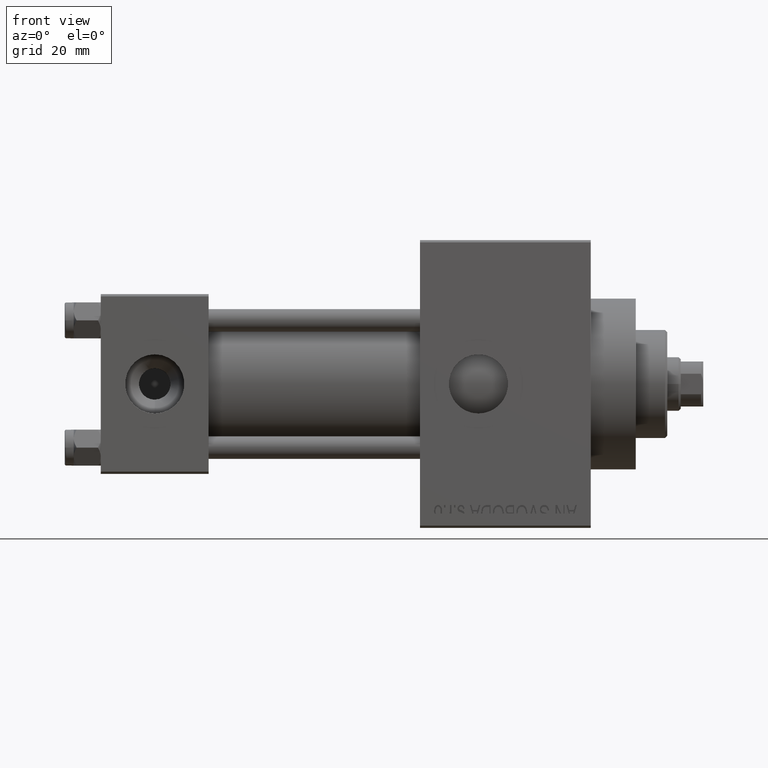
[diagram: clean part render]
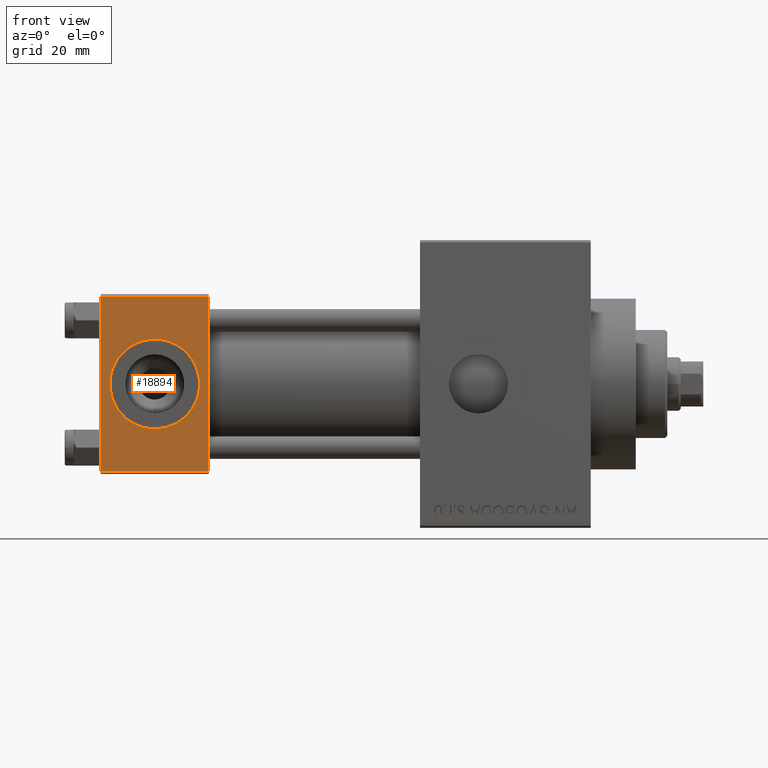
[diagram: same view with one face highlighted and labeled with its STEP entity id]
A machine part, front view. The second image highlights one B-rep face of the part: STEP entity #18894.
In plain terms, the highlighted planar face has unit normal (0, 1, 0).
Its self-contained STEP definition (entity closure, byte-faithful):
#824 = AXIS2_PLACEMENT_3D ( 'NONE', #48229, #25909, #18944 ) ;
#879 = EDGE_CURVE ( 'NONE', #1422, #21301, #22059, .T. ) ;
#1422 = VERTEX_POINT ( 'NONE', #22474 ) ;
#1591 = DIRECTION ( 'NONE',  ( 0.000000000000000000, 8.673617379884036705E-17, -1.000000000000000000 ) ) ;
#2910 = AXIS2_PLACEMENT_3D ( 'NONE', #47588, #28742, #25008 ) ;
#4452 = CARTESIAN_POINT ( 'NONE',  ( 24.00000000000000000, -20.00000000000000355, 19.49999999999998224 ) ) ;
#5013 = VECTOR ( 'NONE', #14414, 1000.000000000000000 ) ;
#6333 = DIRECTION ( 'NONE',  ( 0.000000000000000000, 0.000000000000000000, -1.000000000000000000 ) ) ;
#6733 = CARTESIAN_POINT ( 'NONE',  ( 24.00000000000000000, -20.00000000000000355, 19.49999999999998224 ) ) ;
#7784 = EDGE_CURVE ( 'NONE', #15213, #36923, #45858, .T. ) ;
#8024 = VECTOR ( 'NONE', #48851, 1000.000000000000000 ) ;
#9214 = CARTESIAN_POINT ( 'NONE',  ( 24.00000000000000000, -20.00000000000000000, -19.49999999999999645 ) ) ;
#10490 = VERTEX_POINT ( 'NONE', #30480 ) ;
#11490 = EDGE_CURVE ( 'NONE', #10490, #34870, #13915, .T. ) ;
#11724 = ORIENTED_EDGE ( 'NONE', *, *, #879, .F. ) ;
#13915 = LINE ( 'NONE', #22590, #5013 ) ;
#14414 = DIRECTION ( 'NONE',  ( 1.000000000000000000, 0.000000000000000000, 0.000000000000000000 ) ) ;
#15213 = VERTEX_POINT ( 'NONE', #6733 ) ;
#15852 = EDGE_CURVE ( 'NONE', #15213, #34870, #34616, .T. ) ;
#17324 = VECTOR ( 'NONE', #46916, 1000.000000000000000 ) ;
#18894 = ADVANCED_FACE ( 'NONE', ( #24515, #32468 ), #21277, .F. ) ;
#18899 = ORIENTED_EDGE ( 'NONE', *, *, #11490, .T. ) ;
#18944 = DIRECTION ( 'NONE',  ( 0.000000000000000000, 0.000000000000000000, -1.000000000000000000 ) ) ;
#19898 = CARTESIAN_POINT ( 'NONE',  ( 0.000000000000000000, -20.00000000000000355, 19.99999999999998934 ) ) ;
#20136 = LINE ( 'NONE', #19898, #17324 ) ;
#21277 = PLANE ( 'NONE',  #2910 ) ;
#21301 = VERTEX_POINT ( 'NONE', #48725 ) ;
#22059 = CIRCLE ( 'NONE', #32317, 9.999999999999996447 ) ;
#22474 = CARTESIAN_POINT ( 'NONE',  ( 12.00000000000000000, -20.00000000000000355, -9.999999999999998224 ) ) ;
#22590 = CARTESIAN_POINT ( 'NONE',  ( 24.00000000000000000, -20.00000000000000000, -19.49999999999999645 ) ) ;
#24515 = FACE_BOUND ( 'NONE', #35255, .T. ) ;
#25008 = DIRECTION ( 'NONE',  ( 0.000000000000000000, -8.673617379884036705E-17, 1.000000000000000000 ) ) ;
#25041 = EDGE_LOOP ( 'NONE', ( #45173, #18899, #29237, #40436 ) ) ;
#25163 = DIRECTION ( 'NONE',  ( 0.000000000000000000, -1.000000000000000000, -8.673617379884036705E-17 ) ) ;
#25909 = DIRECTION ( 'NONE',  ( 0.000000000000000000, -1.000000000000000000, -8.673617379884036705E-17 ) ) ;
#28742 = DIRECTION ( 'NONE',  ( -0.000000000000000000, 1.000000000000000000, 8.673617379884036705E-17 ) ) ;
#29237 = ORIENTED_EDGE ( 'NONE', *, *, #15852, .F. ) ;
#29638 = CARTESIAN_POINT ( 'NONE',  ( 12.00000000000000000, -20.00000000000000355, -1.734723475976807883E-15 ) ) ;
#30480 = CARTESIAN_POINT ( 'NONE',  ( 0.000000000000000000, -20.00000000000000000, -19.49999999999999645 ) ) ;
#32317 = AXIS2_PLACEMENT_3D ( 'NONE', #29638, #25163, #6333 ) ;
#32468 = FACE_OUTER_BOUND ( 'NONE', #25041, .T. ) ;
#34616 = LINE ( 'NONE', #34854, #43947 ) ;
#34854 = CARTESIAN_POINT ( 'NONE',  ( 24.00000000000000000, -20.00000000000000355, 19.99999999999998934 ) ) ;
#34870 = VERTEX_POINT ( 'NONE', #9214 ) ;
#34882 = CIRCLE ( 'NONE', #824, 9.999999999999996447 ) ;
#35255 = EDGE_LOOP ( 'NONE', ( #11724, #43863 ) ) ;
#36923 = VERTEX_POINT ( 'NONE', #46559 ) ;
#37701 = EDGE_CURVE ( 'NONE', #36923, #10490, #20136, .T. ) ;
#39643 = EDGE_CURVE ( 'NONE', #21301, #1422, #34882, .T. ) ;
#40436 = ORIENTED_EDGE ( 'NONE', *, *, #7784, .T. ) ;
#43863 = ORIENTED_EDGE ( 'NONE', *, *, #39643, .F. ) ;
#43947 = VECTOR ( 'NONE', #1591, 1000.000000000000000 ) ;
#45173 = ORIENTED_EDGE ( 'NONE', *, *, #37701, .T. ) ;
#45858 = LINE ( 'NONE', #4452, #8024 ) ;
#46559 = CARTESIAN_POINT ( 'NONE',  ( 0.000000000000000000, -20.00000000000000355, 19.49999999999998224 ) ) ;
#46916 = DIRECTION ( 'NONE',  ( 0.000000000000000000, 8.673617379884036705E-17, -1.000000000000000000 ) ) ;
#47588 = CARTESIAN_POINT ( 'NONE',  ( 24.00000000000000000, -20.00000000000000355, 19.99999999999998934 ) ) ;
#48229 = CARTESIAN_POINT ( 'NONE',  ( 12.00000000000000000, -20.00000000000000355, -1.734723475976807883E-15 ) ) ;
#48725 = CARTESIAN_POINT ( 'NONE',  ( 12.00000000000000178, -20.00000000000000355, 9.999999999999994671 ) ) ;
#48851 = DIRECTION ( 'NONE',  ( -1.000000000000000000, 0.000000000000000000, 0.000000000000000000 ) ) ;